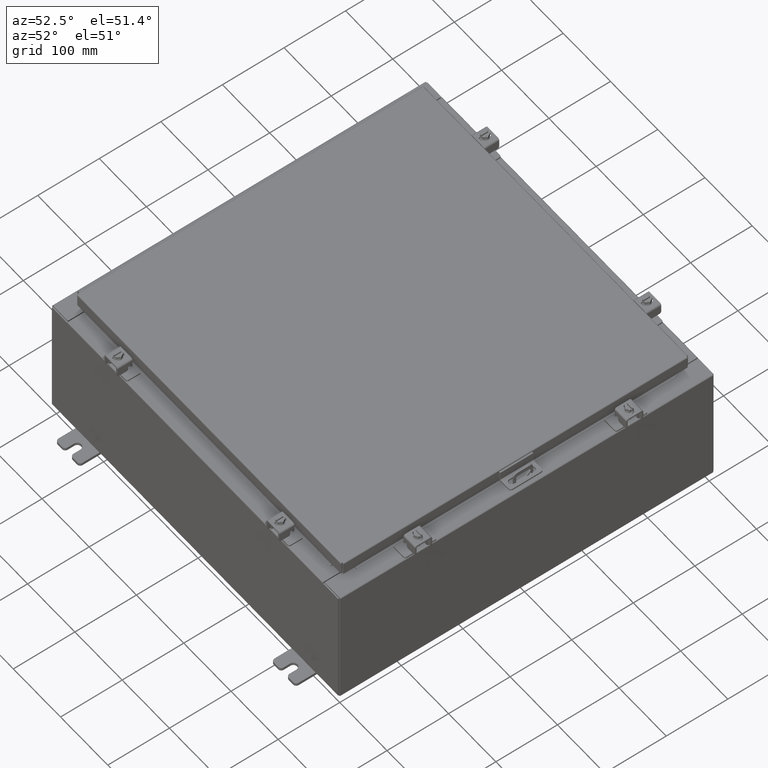
[diagram: clean part render]
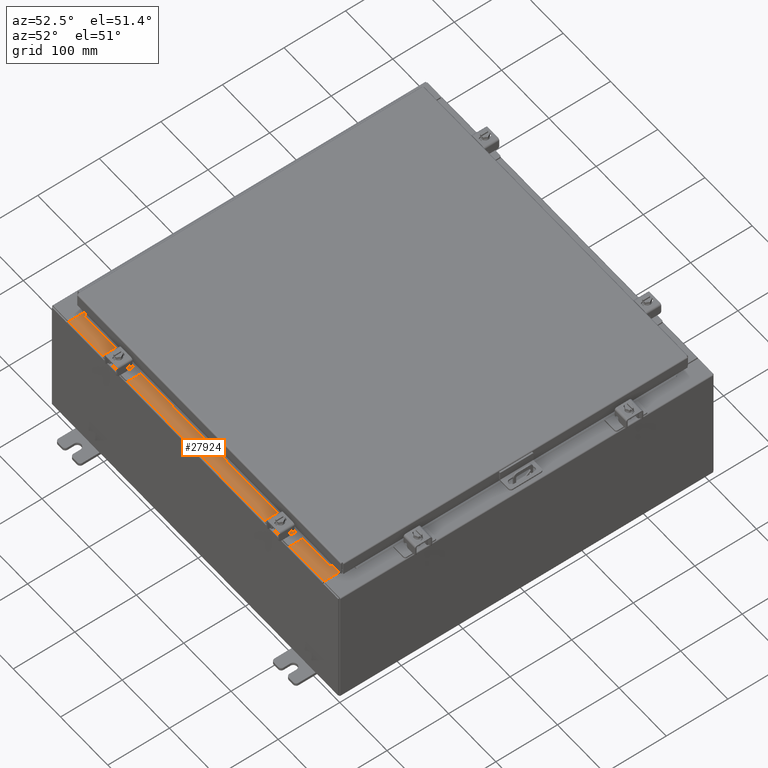
[diagram: same view with one face highlighted and labeled with its STEP entity id]
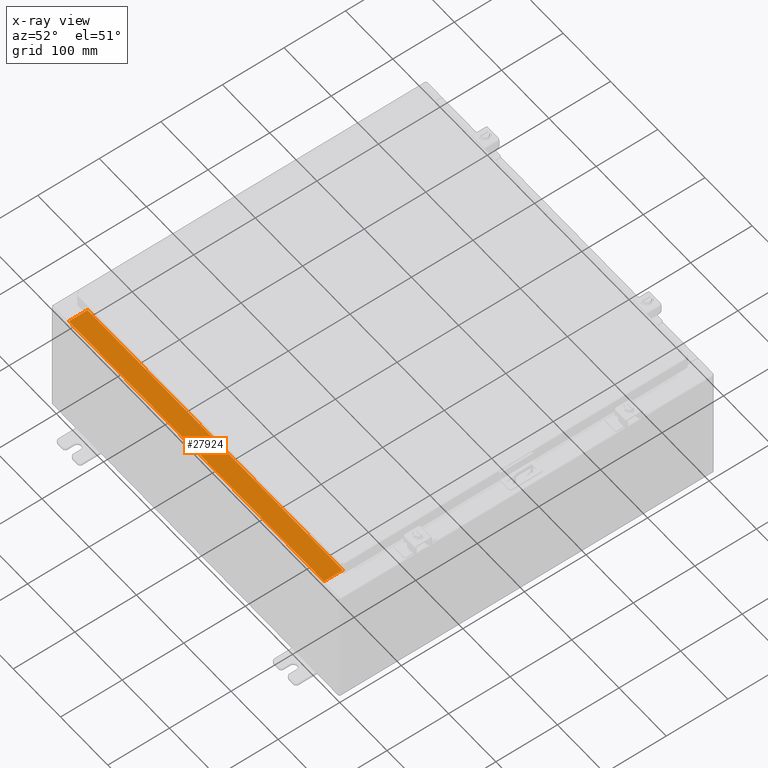
[diagram: x-ray of the same camera — body ghosted, the highlighted face saturated]
A machine part, auxiliary view. The second image highlights one B-rep face of the part: STEP entity #27924.
The next image is the same camera in x-ray: the body ghosted, the highlighted face saturated — about 0% of this face is hidden behind the body in this view.
In plain terms, the highlighted planar face has unit normal (-0, -0, 1).
Its self-contained STEP definition (entity closure, byte-faithful):
#76 = VERTEX_POINT ( 'NONE', #561 ) ;
#442 = DIRECTION ( 'NONE',  ( -5.376446204296997200E-017, -1.000000000000000000, 3.599933028129398900E-015 ) ) ;
#561 = CARTESIAN_POINT ( 'NONE',  ( -10.63720000000000200, -1.287299999999999200, 4.000000000000003600 ) ) ;
#1583 = ORIENTED_EDGE ( 'NONE', *, *, #23186, .F. ) ;
#3453 = CARTESIAN_POINT ( 'NONE',  ( 10.63720000000000200, -1.287300000000001200, 4.000000000000006200 ) ) ;
#8595 = CARTESIAN_POINT ( 'NONE',  ( 10.63720000000000200, -1.300299999999999300, 4.000000000000006200 ) ) ;
#10254 = PLANE ( 'NONE',  #26597 ) ;
#10822 = VECTOR ( 'NONE', #23462, 39.37007874015748100 ) ;
#12340 = CARTESIAN_POINT ( 'NONE',  ( -10.63720000000000200, -0.08770000000000026400, 3.999999999999998700 ) ) ;
#12458 = FACE_OUTER_BOUND ( 'NONE', #23179, .T. ) ;
#13078 = VECTOR ( 'NONE', #31012, 39.37007874015748100 ) ;
#13157 = CARTESIAN_POINT ( 'NONE',  ( -10.63720000000000200, -0.07470000000000015500, 3.999999999999998700 ) ) ;
#13315 = EDGE_CURVE ( 'NONE', #16557, #24873, #24029, .T. ) ;
#15268 = DIRECTION ( 'NONE',  ( 1.665334536937734800E-016, 3.599933028129398900E-015, 1.000000000000000000 ) ) ;
#15844 = VECTOR ( 'NONE', #28147, 39.37007874015748100 ) ;
#16557 = VERTEX_POINT ( 'NONE', #30885 ) ;
#18576 = VERTEX_POINT ( 'NONE', #12340 ) ;
#19012 = LINE ( 'NONE', #29078, #31697 ) ;
#19435 = ORIENTED_EDGE ( 'NONE', *, *, #13315, .F. ) ;
#19554 = EDGE_CURVE ( 'NONE', #16557, #18576, #27159, .T. ) ;
#23179 = EDGE_LOOP ( 'NONE', ( #24867, #1583, #19435, #26395 ) ) ;
#23186 = EDGE_CURVE ( 'NONE', #24873, #76, #19012, .T. ) ;
#23462 = DIRECTION ( 'NONE',  ( -5.376446204296997200E-017, -1.000000000000000000, 3.599933028129398900E-015 ) ) ;
#24029 = LINE ( 'NONE', #8595, #10822 ) ;
#24867 = ORIENTED_EDGE ( 'NONE', *, *, #30525, .F. ) ;
#24873 = VERTEX_POINT ( 'NONE', #3453 ) ;
#26395 = ORIENTED_EDGE ( 'NONE', *, *, #19554, .T. ) ;
#26597 = AXIS2_PLACEMENT_3D ( 'NONE', #30344, #15268, #442 ) ;
#27159 = LINE ( 'NONE', #31119, #13078 ) ;
#27924 = ADVANCED_FACE ( 'NONE', ( #12458 ), #10254, .T. ) ;
#28147 = DIRECTION ( 'NONE',  ( 5.376446204296997200E-017, 1.000000000000000000, -3.599933028129398900E-015 ) ) ;
#29078 = CARTESIAN_POINT ( 'NONE',  ( 10.63720000000000400, -1.287300000000001200, 4.000000000000005300 ) ) ;
#29181 = DIRECTION ( 'NONE',  ( -1.000000000000000000, -5.376446204297056400E-017, -1.665334536937734800E-016 ) ) ;
#29185 = LINE ( 'NONE', #13157, #15844 ) ;
#30344 = CARTESIAN_POINT ( 'NONE',  ( 6.661338148662792400E-016, 1.311287036958846300E-014, 4.000000000000000000 ) ) ;
#30525 = EDGE_CURVE ( 'NONE', #76, #18576, #29185, .T. ) ;
#30885 = CARTESIAN_POINT ( 'NONE',  ( 10.63720000000000400, -0.08770000000000026400, 4.000000000000001800 ) ) ;
#31012 = DIRECTION ( 'NONE',  ( -1.000000000000000000, -2.808244051790510300E-017, -1.665334536937734800E-016 ) ) ;
#31119 = CARTESIAN_POINT ( 'NONE',  ( 6.591663584833952700E-016, -0.08770000000000026400, 4.000000000000000900 ) ) ;
#31697 = VECTOR ( 'NONE', #29181, 39.37007874015748100 ) ;